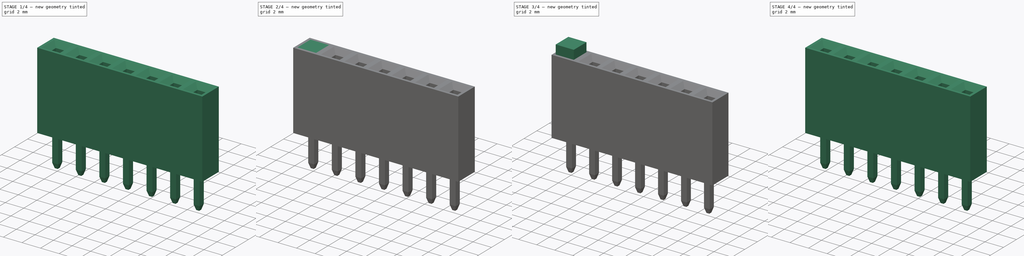
[diagram: build sequence overview — one tinted view per stage of 4, left to right]
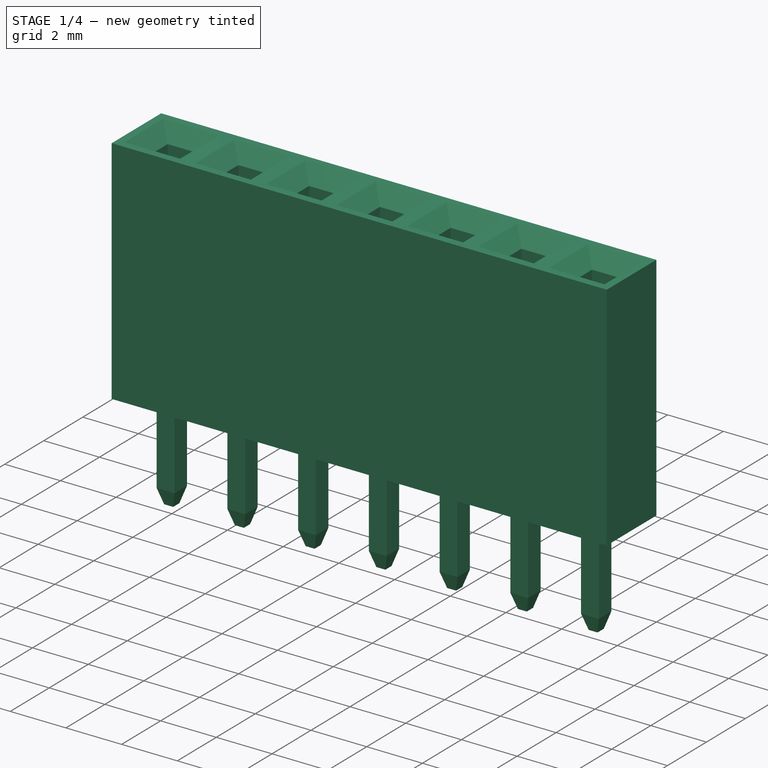
[diagram: stage 1 of 4 — iso view after this stage's code; geometry added in this stage tinted green]
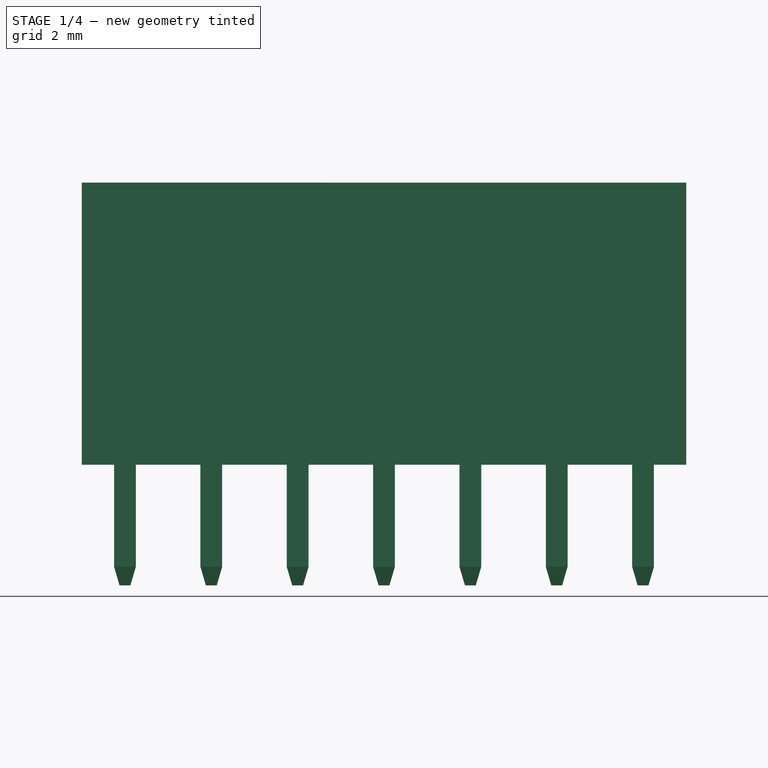
[diagram: stage 1 of 4 — front view after this stage's code; geometry added in this stage tinted green]
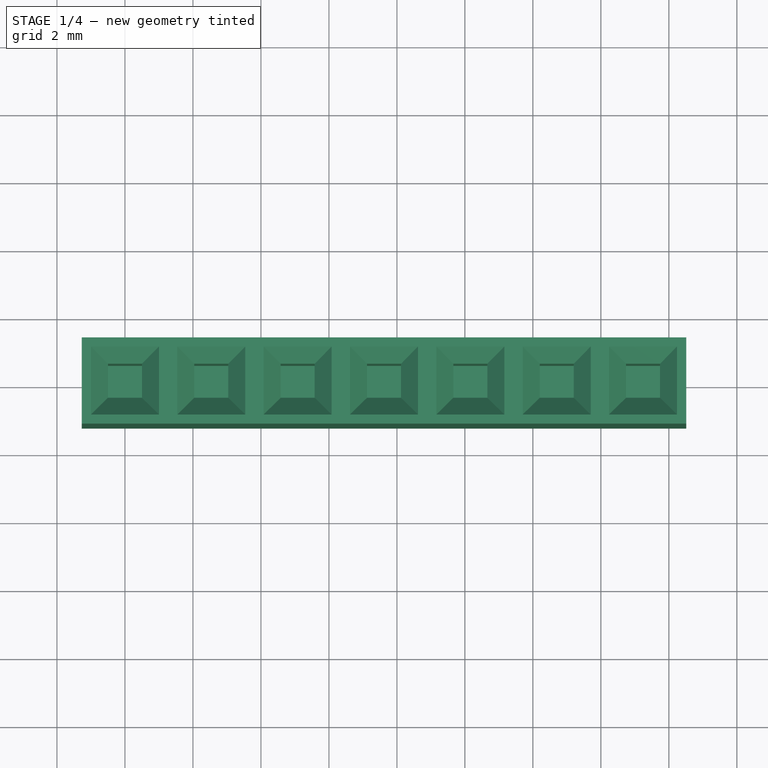
[diagram: stage 1 of 4 — top view after this stage's code; geometry added in this stage tinted green]
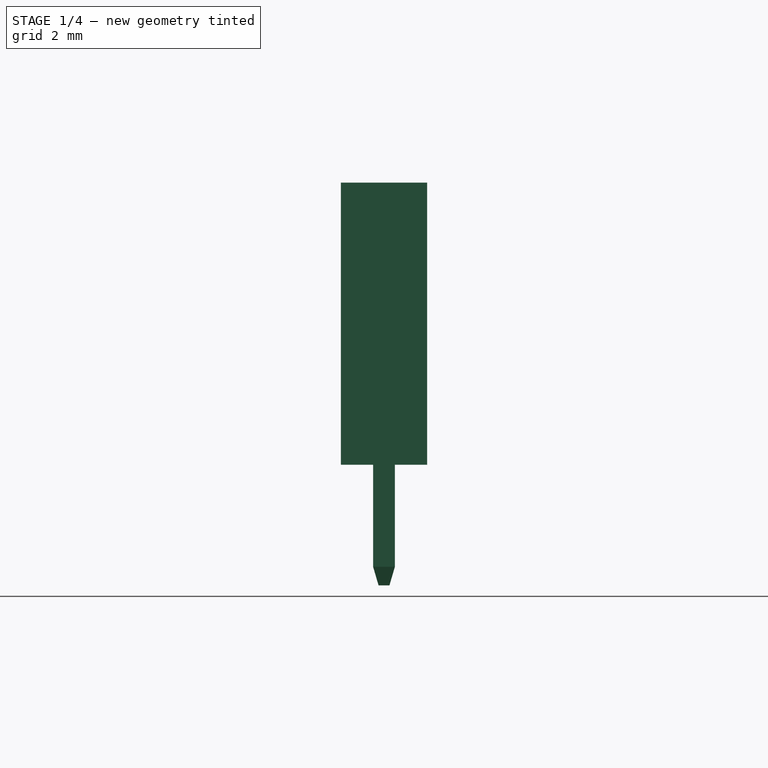
[diagram: stage 1 of 4 — right view after this stage's code; geometry added in this stage tinted green]
FCSTD DOCUMENT  (FreeCAD 0.14R3702 (Git))
Label: 1x7-female-pin-header
License: CC-BY 3.0
LicenseURL: http://creativecommons.org/licenses/by/3.0/
objects: Sketcher::SketchObject×8, PartDesign::Pad×4, Part::Loft×2, Part::FeaturePython×2, Part::Feature×2, Part::MultiFuse×1, Part::Cut×1, App::DocumentObjectGroup×1, Part::Compound×1
note: 25 computed .brp shape members not serialized (recipe doc carries the construction recipe); baked Part::Feature solids carry a one-line shape summary decoded from their .brp

FEATURE [Sketcher::SketchObject] Sketch002  label="pin-base-sketch"
  Placement = pos=(0,0,-3) rot=(0,0,1;0rad)
  sketch-geometry (4):
    g0: LineSegment StartX=-0.32 StartY=0.32 StartZ=0 EndX=0.32 EndY=0.32 EndZ=0
    g1: LineSegment StartX=0.32 StartY=0.32 StartZ=0 EndX=0.32 EndY=-0.32 EndZ=0
    g2: LineSegment StartX=0.32 StartY=-0.32 StartZ=0 EndX=-0.32 EndY=-0.32 EndZ=0
    g3: LineSegment StartX=-0.32 StartY=-0.32 StartZ=0 EndX=-0.32 EndY=0.32 EndZ=0
  constraints (11):
    c: Coincident(g0,g1)
    c: Coincident(g1,g2)
    c: Coincident(g2,g3)
    c: Coincident(g3,g0)
    c: Horizontal(g0)
    c: Horizontal(g2)
    c: Vertical(g1)
    c: Vertical(g3)
    c: Symmetric(g0,g1,g-1)
    c: Equal(g0,g3)
    c: DistanceX(g0) = 0.64
FEATURE [PartDesign::Pad] Pad001  label="pin-base"
  Length = 3
  Length2 = 100
  Placement = pos=(0,0,-3) rot=(0,0,1;0rad)
  Sketch = -> Sketch002
  Type = 0
FEATURE [Sketcher::SketchObject] Sketch003  label="pin-end-top-base-sketch"
  Placement = pos=(0,0,0.546) rot=(0,0,1;0rad)
  sketch-geometry (4):
    g0: LineSegment StartX=-0.16 StartY=0.16 StartZ=0 EndX=0.16 EndY=0.16 EndZ=0
    g1: LineSegment StartX=0.16 StartY=0.16 StartZ=0 EndX=0.16 EndY=-0.16 EndZ=0
    g2: LineSegment StartX=0.16 StartY=-0.16 StartZ=0 EndX=-0.16 EndY=-0.16 EndZ=0
    g3: LineSegment StartX=-0.16 StartY=-0.16 StartZ=0 EndX=-0.16 EndY=0.16 EndZ=0
  constraints (11):
    c: Coincident(g0,g1)
    c: Coincident(g1,g2)
    c: Coincident(g2,g3)
    c: Coincident(g3,g0)
    c: Horizontal(g0)
    c: Horizontal(g2)
    c: Vertical(g1)
    c: Vertical(g3)
    c: Symmetric(g0,g1,g-1)
    c: Equal(g0,g3)
    c: DistanceX(g0) = 0.32
FEATURE [Sketcher::SketchObject] Sketch004  label="pin-end-bottom-base-sketch"
  sketch-geometry (4):
    g0: LineSegment StartX=-0.32 StartY=0.32 StartZ=0 EndX=0.32 EndY=0.32 EndZ=0
    g1: LineSegment StartX=0.32 StartY=0.32 StartZ=0 EndX=0.32 EndY=-0.32 EndZ=0
    g2: LineSegment StartX=0.32 StartY=-0.32 StartZ=0 EndX=-0.32 EndY=-0.32 EndZ=0
    g3: LineSegment StartX=-0.32 StartY=-0.32 StartZ=0 EndX=-0.32 EndY=0.32 EndZ=0
  constraints (11):
    c: Coincident(g0,g1)
    c: Coincident(g1,g2)
    c: Coincident(g2,g3)
    c: Coincident(g3,g0)
    c: Horizontal(g0)
    c: Horizontal(g2)
    c: Vertical(g1)
    c: Vertical(g3)
    c: Symmetric(g0,g1,g-1)
    c: Equal(g0,g3)
    c: DistanceX(g0) = 0.64
FEATURE [Part::Loft] Loft  label="pin-end"
  Closed = false
  Placement = pos=(0,0,-3) rot=(0,1,0;3.14159rad)
  Ruled = false
  Sections = -> [Sketch004,Sketch003]
  Solid = true
FEATURE [App::DocumentObjectGroup] Group  label="header-srcs"
  Group = -> [Pad,Fusion,Loft001,Pad002,Pad003,Cut,Array002]
FEATURE [Part::Feature] Cut001  label="1x7-female-body001"
  shape: bbox 17.78 x 2.54 x 8.3 mm, 69 faces (baked)
FEATURE [Part::Feature] Array  label="pin-array-src001"
  shape: bbox 15.88 x 0.64 x 3.546 mm, 70 faces, 7 solids (baked)
FEATURE [Part::Compound] Compound  label="1x7-female-pin-header"
  Links = -> [Cut001,Array]
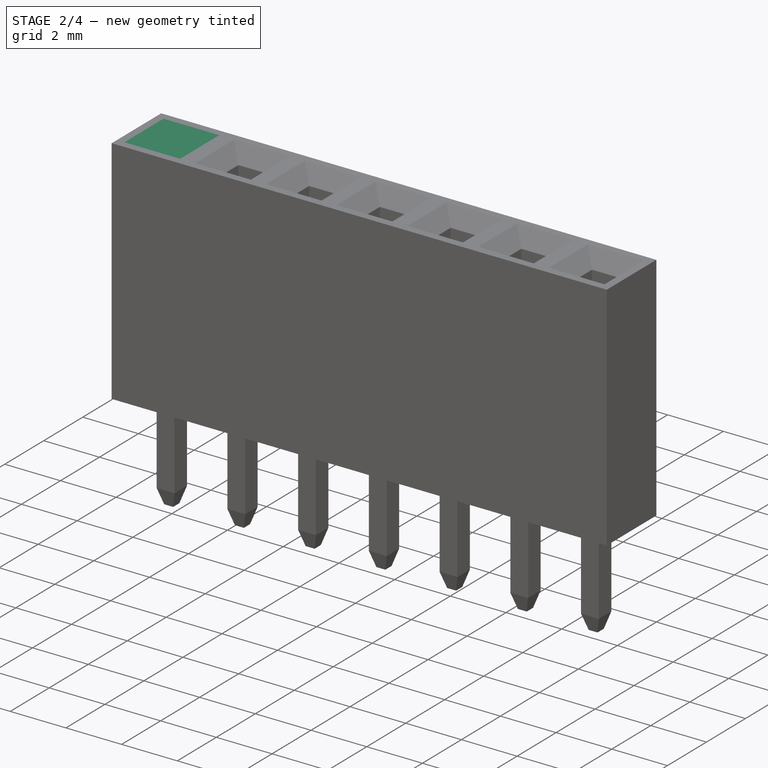
[diagram: stage 2 of 4 — iso view after this stage's code; geometry added in this stage tinted green]
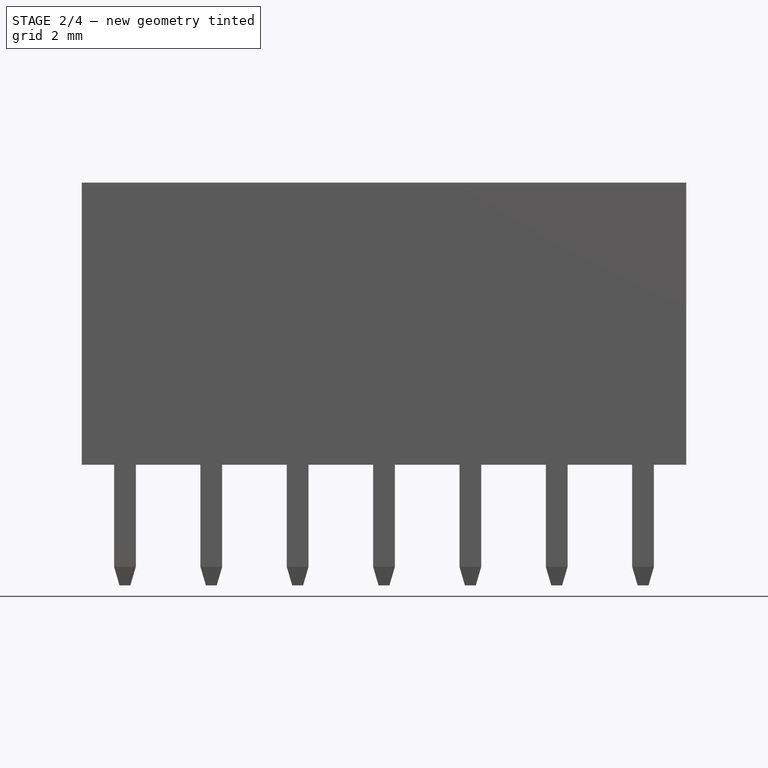
[diagram: stage 2 of 4 — front view after this stage's code; geometry added in this stage tinted green]
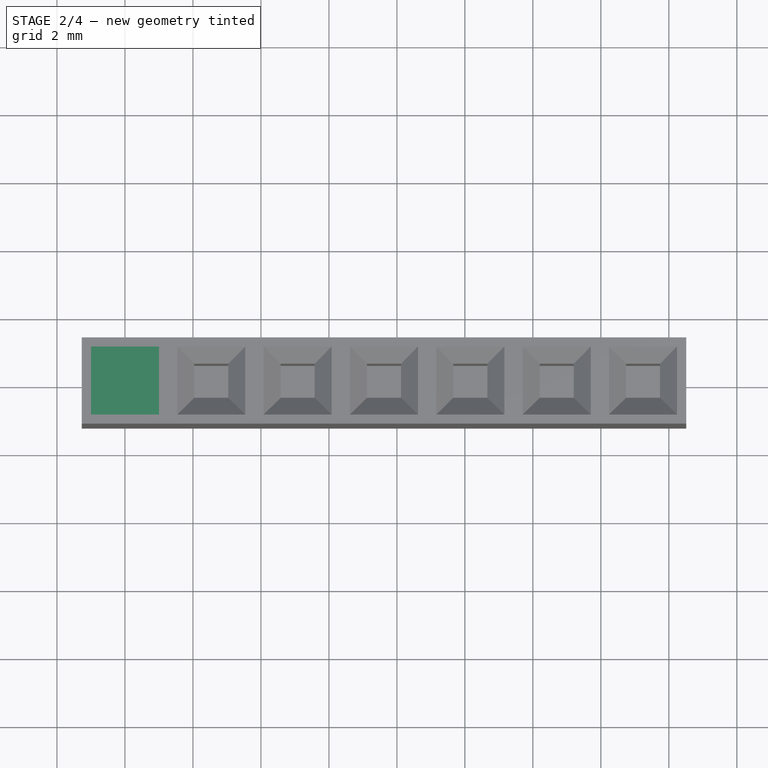
[diagram: stage 2 of 4 — top view after this stage's code; geometry added in this stage tinted green]
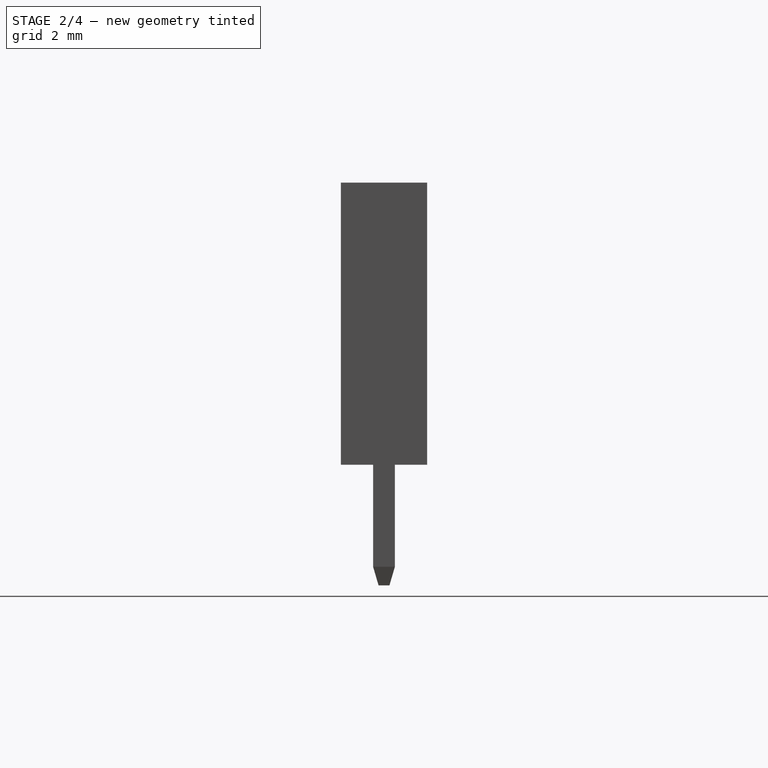
[diagram: stage 2 of 4 — right view after this stage's code; geometry added in this stage tinted green]
FEATURE [Part::MultiFuse] Fusion  label="pin-bottom"
  Shapes = -> [Pad001,Loft]
FEATURE [Sketcher::SketchObject] Sketch005  label="female-hole-small-section-sketch"
  sketch-geometry (4):
    g0: LineSegment StartX=-0.5 StartY=0.5 StartZ=0 EndX=0.5 EndY=0.5 EndZ=0
    g1: LineSegment StartX=0.5 StartY=0.5 StartZ=0 EndX=0.5 EndY=-0.5 EndZ=0
    g2: LineSegment StartX=0.5 StartY=-0.5 StartZ=0 EndX=-0.5 EndY=-0.5 EndZ=0
    g3: LineSegment StartX=-0.5 StartY=-0.5 StartZ=0 EndX=-0.5 EndY=0.5 EndZ=0
  constraints (11):
    c: Coincident(g0,g1)
    c: Coincident(g1,g2)
    c: Coincident(g2,g3)
    c: Coincident(g3,g0)
    c: Horizontal(g0)
    c: Horizontal(g2)
    c: Vertical(g1)
    c: Vertical(g3)
    c: Symmetric(g0,g1,g-1)
    c: Equal(g3,g0)
    c: DistanceX(g0) = 1
FEATURE [Sketcher::SketchObject] Sketch006  label="female-hole-big-section-sketch"
  Placement = pos=(0,0,0.5) rot=(0,0,1;0rad)
  sketch-geometry (4):
    g0: LineSegment StartX=-1 StartY=1 StartZ=0 EndX=1 EndY=1 EndZ=0
    g1: LineSegment StartX=1 StartY=1 StartZ=0 EndX=1 EndY=-1 EndZ=0
    g2: LineSegment StartX=1 StartY=-1 StartZ=0 EndX=-1 EndY=-1 EndZ=0
    g3: LineSegment StartX=-1 StartY=-1 StartZ=0 EndX=-1 EndY=1 EndZ=0
  constraints (11):
    c: Coincident(g0,g1)
    c: Coincident(g1,g2)
    c: Coincident(g2,g3)
    c: Coincident(g3,g0)
    c: Horizontal(g0)
    c: Horizontal(g2)
    c: Vertical(g1)
    c: Vertical(g3)
    c: Symmetric(g0,g1,g-1)
    c: Equal(g3,g0)
    c: DistanceX(g0) = 2
FEATURE [Part::Loft] Loft001  label="female-hole-end"
  Closed = false
  Placement = pos=(0,0,7.8) rot=(0,0,1;0rad)
  Ruled = false
  Sections = -> [Sketch005,Sketch006]
  Solid = true
FEATURE [Part::FeaturePython] Array002  label="pin-array-src"  # Draft array (typed FeaturePython)
  Angle = 360
  ArrayType = 0
  Axis = (0,0,1)
  Base = -> Fusion
  Center = (0,0,0)
  IntervalX = (2.54,0,0)
  IntervalY = (0,1,0)
  IntervalZ = (0,0,1)
  NumberPolar = 1
  NumberX = 7
  NumberY = 1
  NumberZ = 1
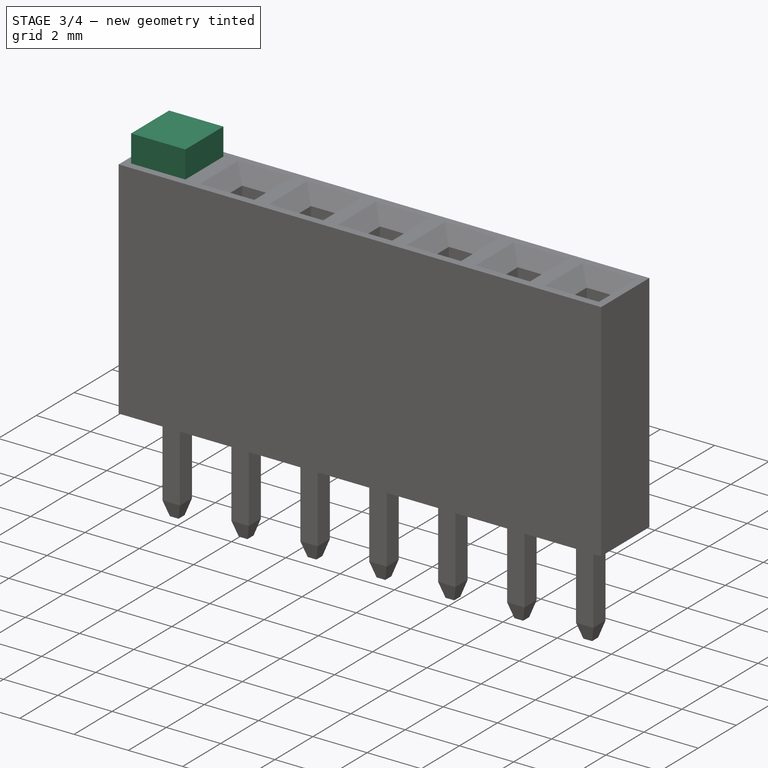
[diagram: stage 3 of 4 — iso view after this stage's code; geometry added in this stage tinted green]
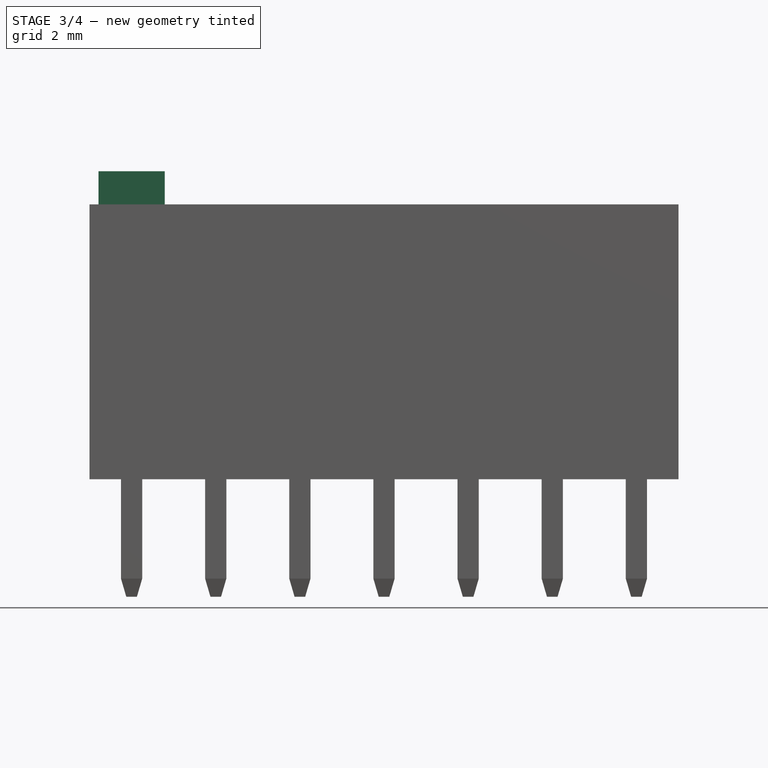
[diagram: stage 3 of 4 — front view after this stage's code; geometry added in this stage tinted green]
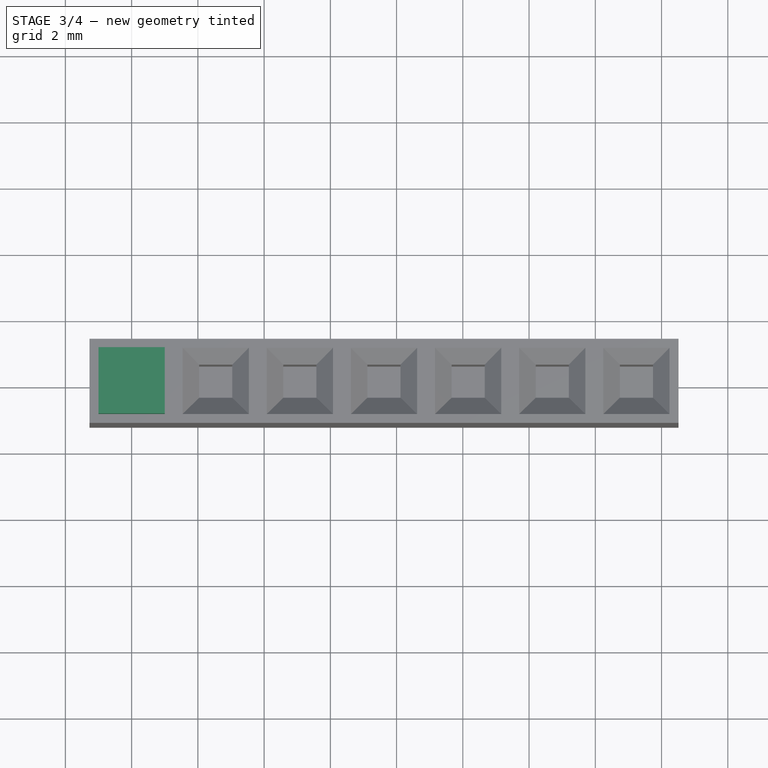
[diagram: stage 3 of 4 — top view after this stage's code; geometry added in this stage tinted green]
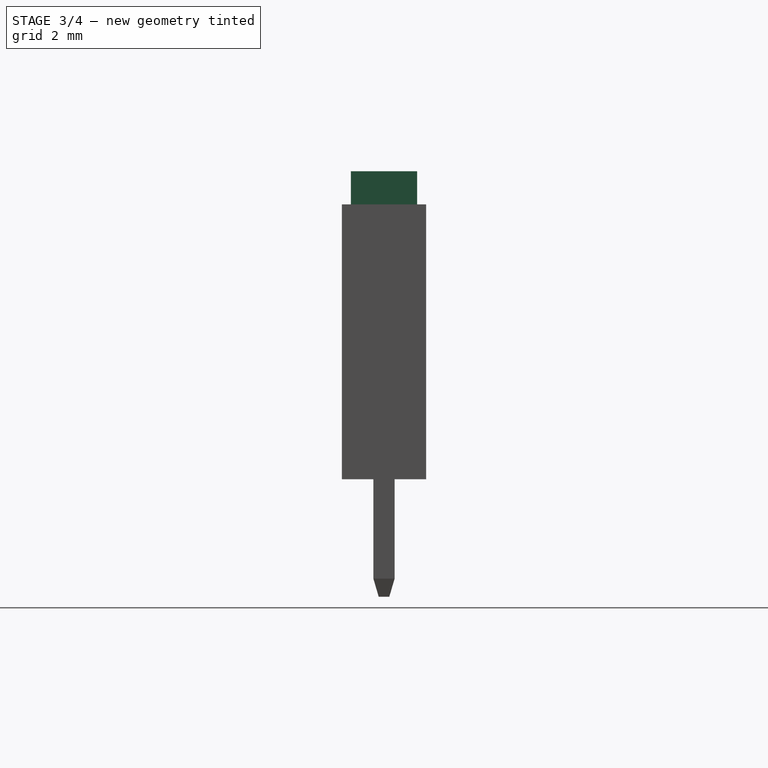
[diagram: stage 3 of 4 — right view after this stage's code; geometry added in this stage tinted green]
FEATURE [Sketcher::SketchObject] Sketch007  label="female-hole-end2-sketch"
  Placement = pos=(0,0,8.3) rot=(0,0,1;0rad)
  Support = -> Loft001 [Face6]
  sketch-geometry (4):
    g0: LineSegment StartX=-1 StartY=1 StartZ=0 EndX=1 EndY=1 EndZ=0
    g1: LineSegment StartX=1 StartY=1 StartZ=0 EndX=1 EndY=-1 EndZ=0
    g2: LineSegment StartX=1 StartY=-1 StartZ=0 EndX=-1 EndY=-1 EndZ=0
    g3: LineSegment StartX=-1 StartY=-1 StartZ=0 EndX=-1 EndY=1 EndZ=0
  constraints (8):
    c: Coincident(g0,g1)
    c: Coincident(g1,g2)
    c: Coincident(g2,g3)
    c: Coincident(g3,g0)
    c: Horizontal(g0)
    c: Horizontal(g2)
    c: Vertical(g1)
    c: Vertical(g3)
FEATURE [PartDesign::Pad] Pad002  label="female-hole-end2"
  Length = 1
  Length2 = 100
  Placement = pos=(0,0,7.8) rot=(0,0,1;0rad)
  Sketch = -> Sketch007
  Type = 0
FEATURE [Sketcher::SketchObject] Sketch008  label="female-hole-end3-sketch"
  Placement = pos=(0,0,7.8) rot=(1,0,0;3.14159rad)
  Support = -> Pad002 [Face1]
  sketch-geometry (4):
    g0: LineSegment StartX=-0.5 StartY=0.5 StartZ=0 EndX=0.5 EndY=0.5 EndZ=0
    g1: LineSegment StartX=0.5 StartY=0.5 StartZ=0 EndX=0.5 EndY=-0.5 EndZ=0
    g2: LineSegment StartX=0.5 StartY=-0.5 StartZ=0 EndX=-0.5 EndY=-0.5 EndZ=0
    g3: LineSegment StartX=-0.5 StartY=-0.5 StartZ=0 EndX=-0.5 EndY=0.5 EndZ=0
  constraints (8):
    c: Coincident(g0,g1)
    c: Coincident(g1,g2)
    c: Coincident(g2,g3)
    c: Coincident(g3,g0)
    c: Horizontal(g0)
    c: Horizontal(g2)
    c: Vertical(g1)
    c: Vertical(g3)
FEATURE [PartDesign::Pad] Pad003  label="female-hole-end3"
  Length = 3.5
  Length2 = 100
  Placement = pos=(0,0,7.8) rot=(0,0,1;0rad)
  Sketch = -> Sketch008
  Type = 0
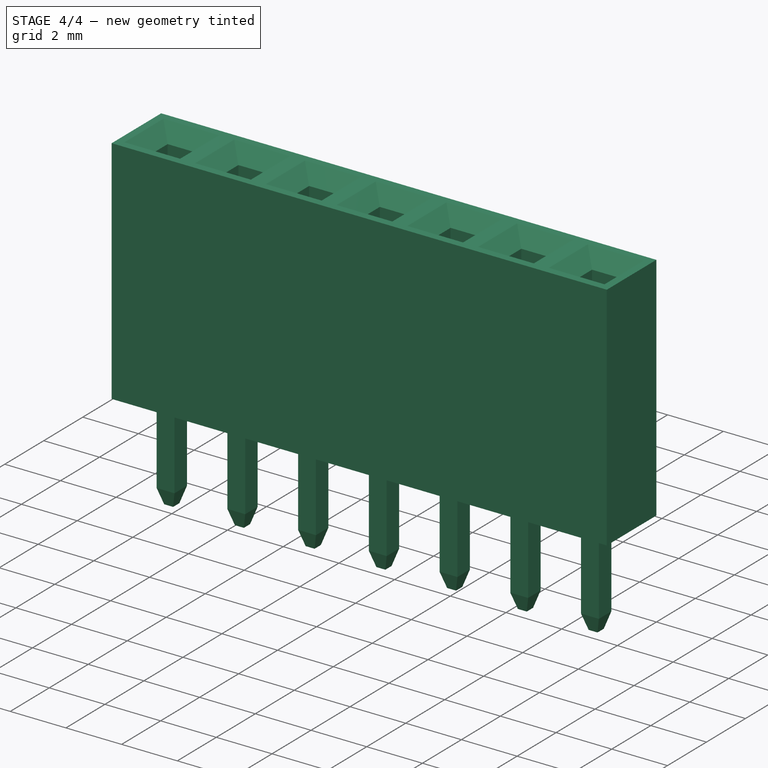
[diagram: stage 4 of 4 — iso view after this stage's code; geometry added in this stage tinted green]
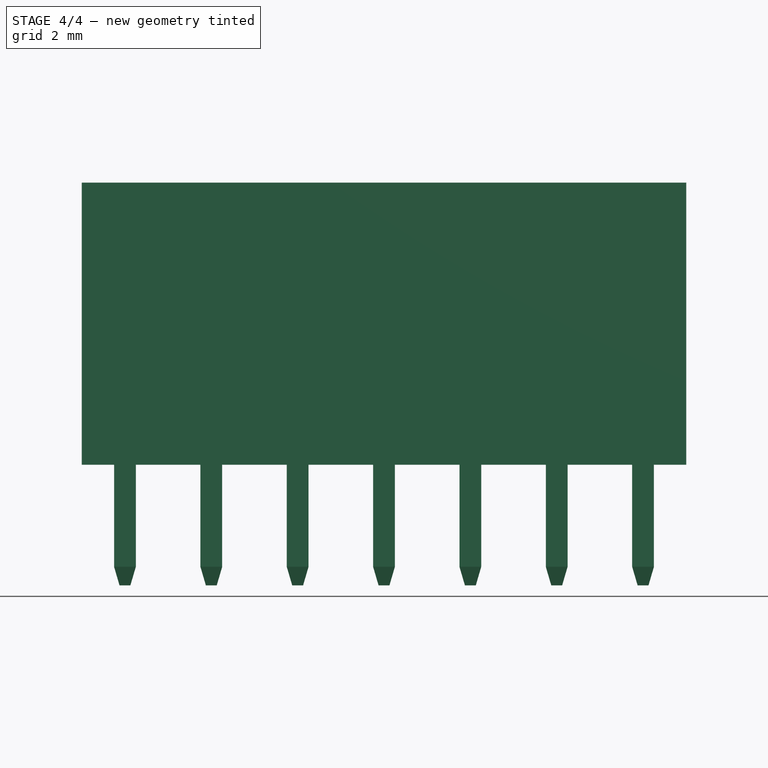
[diagram: stage 4 of 4 — front view after this stage's code; geometry added in this stage tinted green]
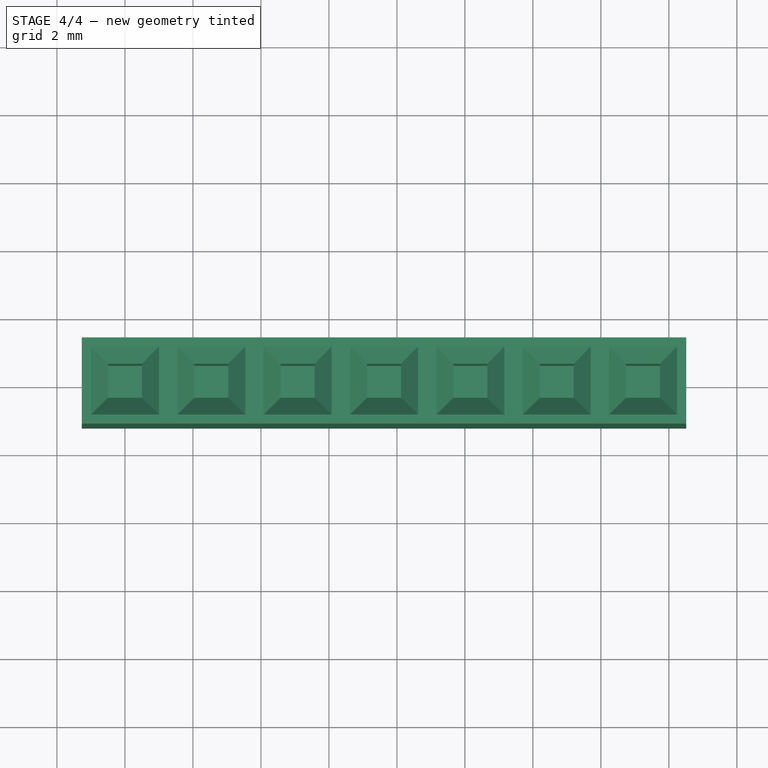
[diagram: stage 4 of 4 — top view after this stage's code; geometry added in this stage tinted green]
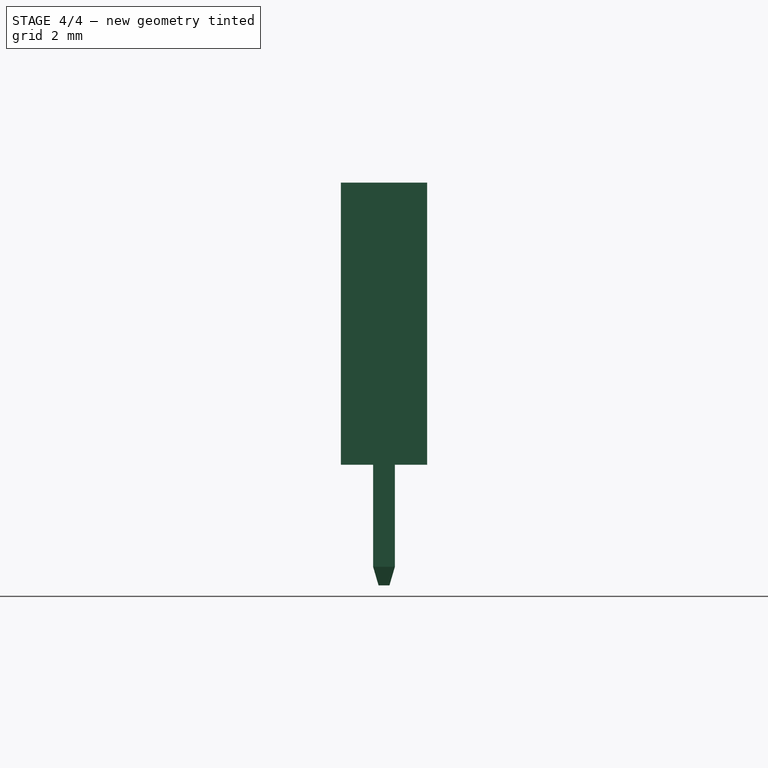
[diagram: stage 4 of 4 — right view after this stage's code; geometry added in this stage tinted green]
FEATURE [Sketcher::SketchObject] Sketch  label="main-body-sketch"
  sketch-geometry (4):
    g0: LineSegment StartX=-1.27 StartY=1.27 StartZ=0 EndX=16.51 EndY=1.27 EndZ=0
    g1: LineSegment StartX=16.51 StartY=1.27 StartZ=0 EndX=16.51 EndY=-1.27 EndZ=0
    g2: LineSegment StartX=16.51 StartY=-1.27 StartZ=0 EndX=-1.27 EndY=-1.27 EndZ=0
    g3: LineSegment StartX=-1.27 StartY=-1.27 StartZ=0 EndX=-1.27 EndY=1.27 EndZ=0
  constraints (12):
    c: Coincident(g0,g1)
    c: Coincident(g1,g2)
    c: Coincident(g2,g3)
    c: Coincident(g3,g0)
    c: Horizontal(g0)
    c: Horizontal(g2)
    c: Vertical(g1)
    c: Vertical(g3)
    c: Symmetric(g0,g2,g-1)
    c: DistanceX(g0) = 17.78
    c: DistanceY(g1) = -2.54
    c: DistanceX(g-1,g0) = -1.27
FEATURE [PartDesign::Pad] Pad  label="main-body"
  Length = 8.3
  Length2 = 100
  Sketch = -> Sketch
  Type = 0
FEATURE [Part::FeaturePython] Array001  # Draft array (typed FeaturePython)
  Angle = 360
  ArrayType = 0
  Axis = (0,0,1)
  Base = -> Pad003
  Center = (0,0,0)
  IntervalX = (2.54,0,0)
  IntervalY = (0,1,0)
  IntervalZ = (0,0,1)
  NumberPolar = 1
  NumberX = 7
  NumberY = 1
  NumberZ = 1
FEATURE [Part::Cut] Cut  label="1x7-female-body-src"
  Base = -> Pad
  Tool = -> Array001
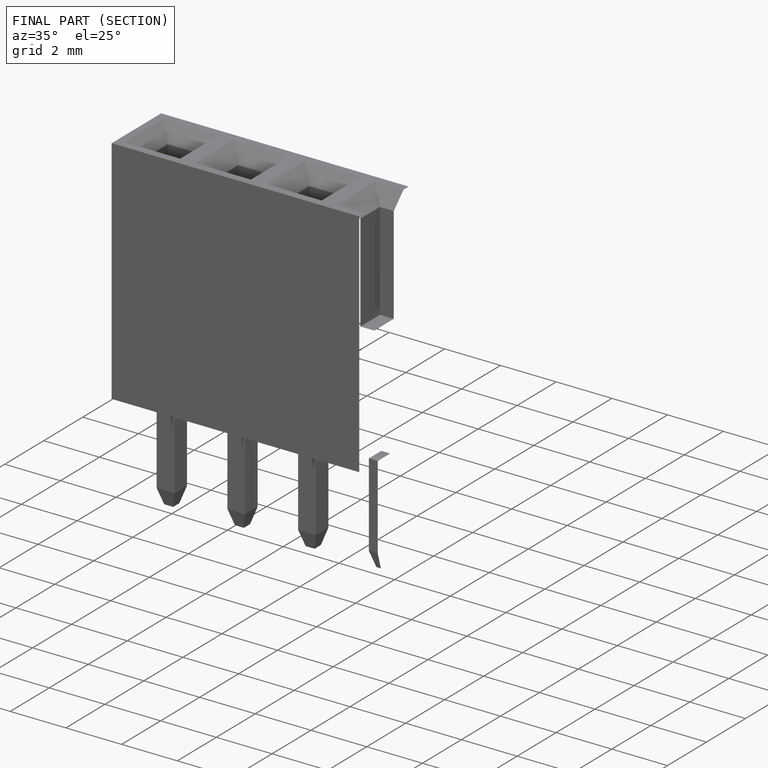
[diagram: finished part — half-section view (interior)]
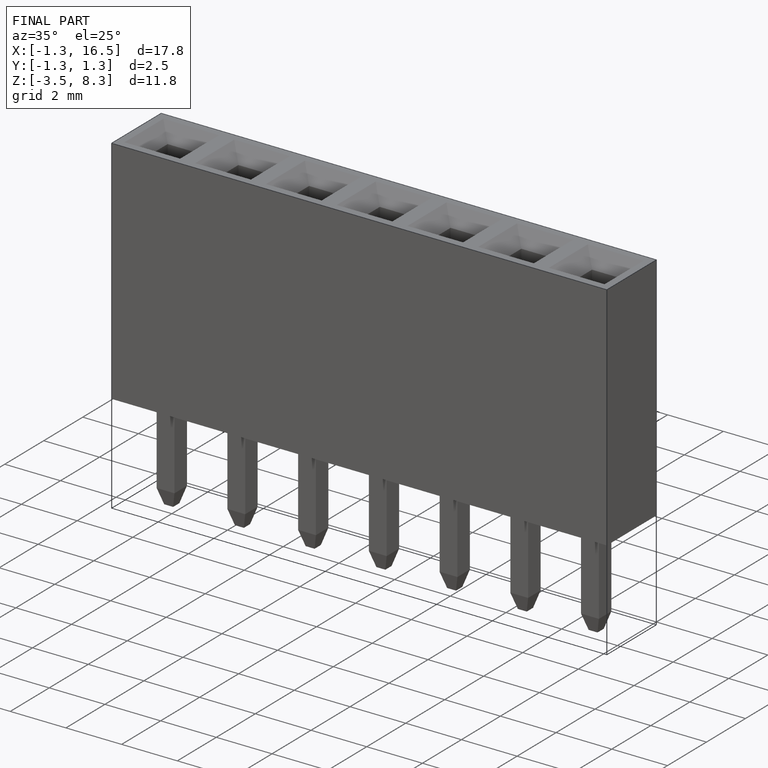
[diagram: finished part — iso view with bounding-box wireframe]
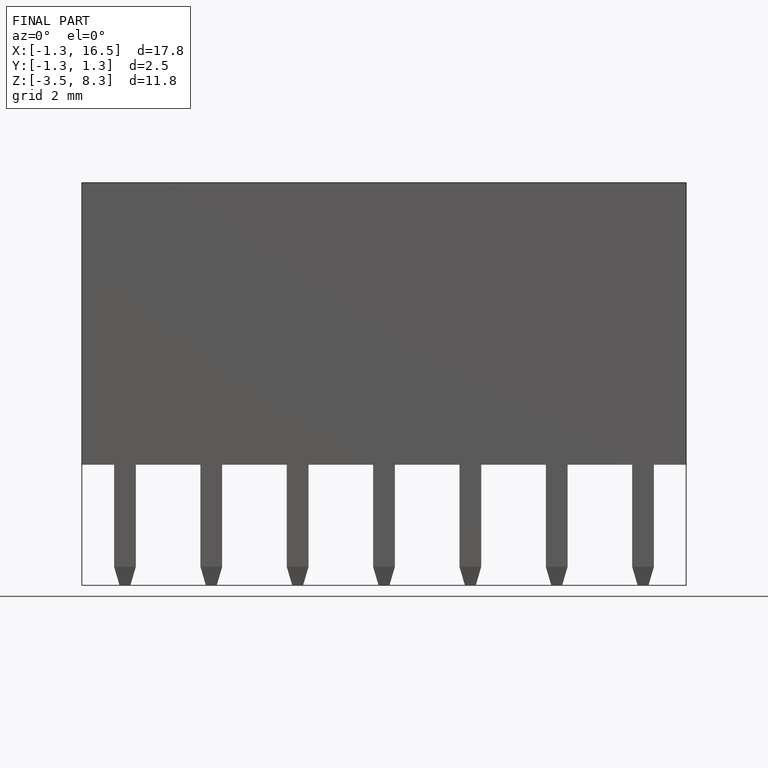
[diagram: finished part — front view with bounding-box wireframe]
